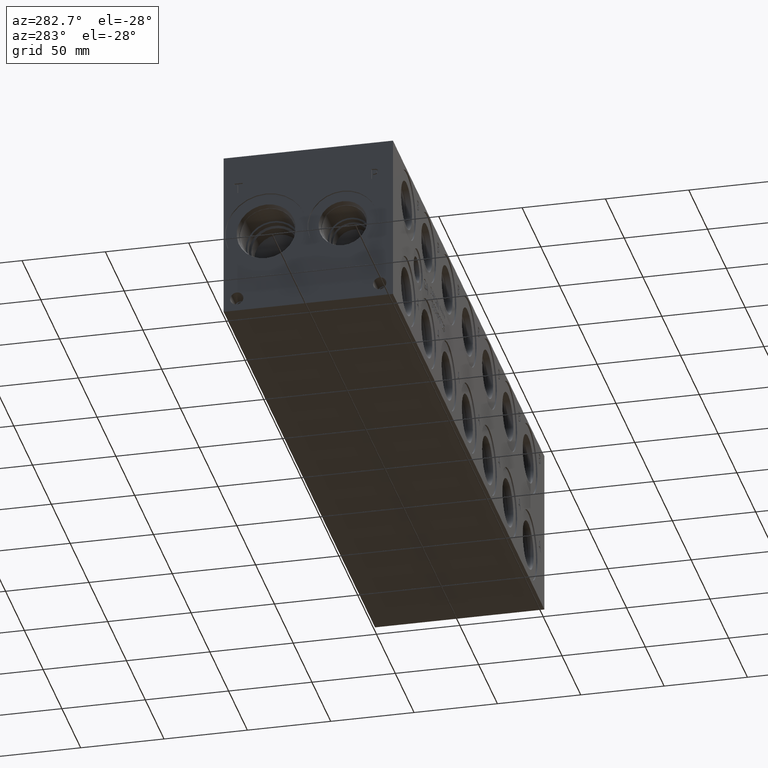
[diagram: clean part render]
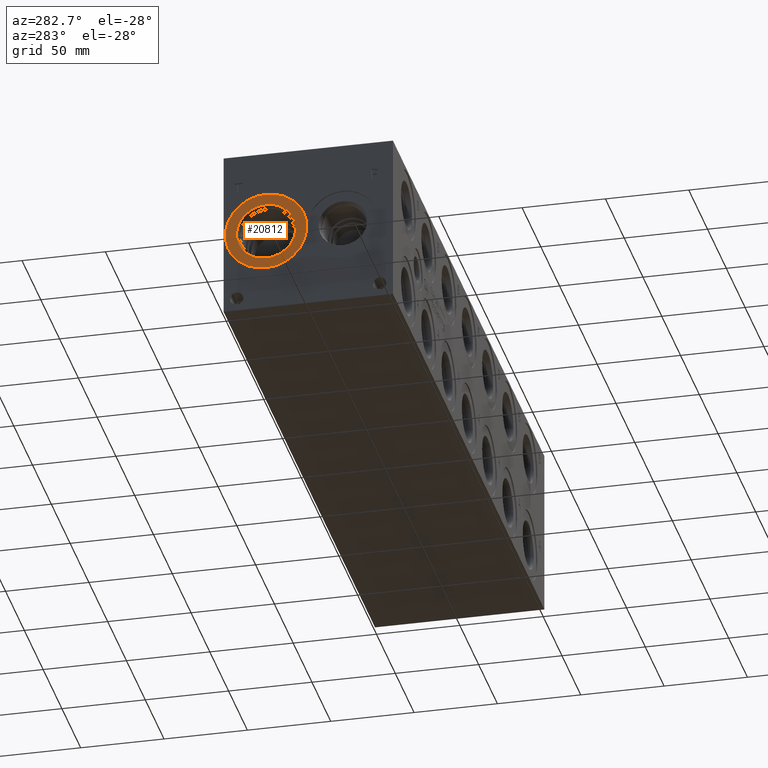
[diagram: same view with one face highlighted and labeled with its STEP entity id]
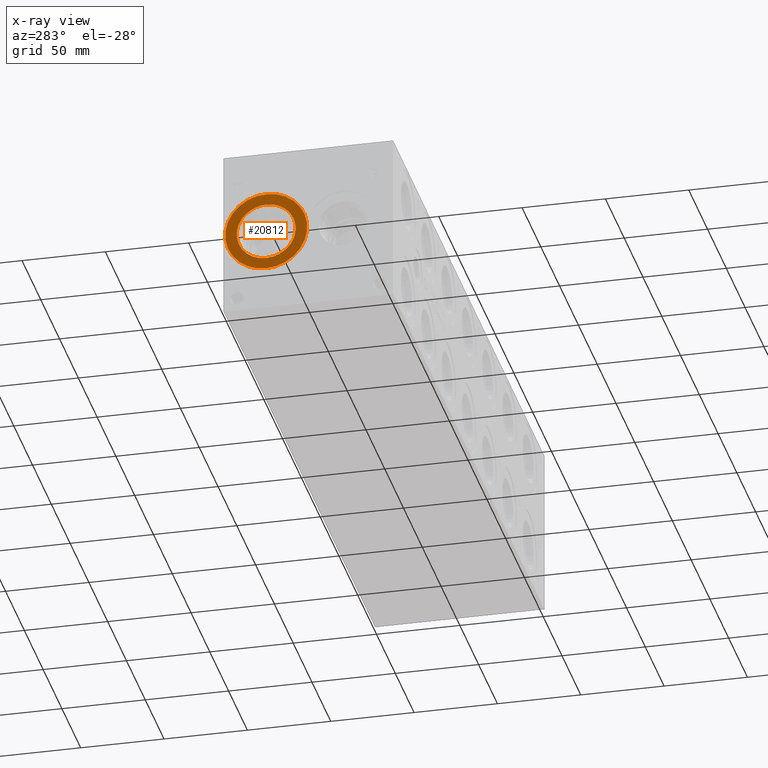
[diagram: x-ray of the same camera — body ghosted, the highlighted face saturated]
A machine part, auxiliary view. The second image highlights one B-rep face of the part: STEP entity #20812.
The next image is the same camera in x-ray: the body ghosted, the highlighted face saturated — about 0% of this face is hidden behind the body in this view.
In plain terms, the highlighted planar face has unit normal (1, 0, 0).
Its self-contained STEP definition (entity closure, byte-faithful):
#499=CIRCLE('',#21846,24.5618);
#500=CIRCLE('',#21847,24.5618);
#501=CIRCLE('',#21849,17.7546);
#502=CIRCLE('',#21850,17.7546);
#1223=FACE_BOUND('',#3967,.T.);
#2751=FACE_OUTER_BOUND('',#3966,.T.);
#3966=EDGE_LOOP('',(#16971,#16972));
#3967=EDGE_LOOP('',(#16973,#16974));
#9338=VERTEX_POINT('',#34891);
#9339=VERTEX_POINT('',#34893);
#9340=VERTEX_POINT('',#34897);
#9341=VERTEX_POINT('',#34898);
#12058=EDGE_CURVE('',#9338,#9339,#499,.T.);
#12059=EDGE_CURVE('',#9339,#9338,#500,.T.);
#12060=EDGE_CURVE('',#9340,#9341,#501,.T.);
#12061=EDGE_CURVE('',#9341,#9340,#502,.T.);
#16971=ORIENTED_EDGE('',*,*,#12059,.F.);
#16972=ORIENTED_EDGE('',*,*,#12058,.F.);
#16973=ORIENTED_EDGE('',*,*,#12060,.T.);
#16974=ORIENTED_EDGE('',*,*,#12061,.T.);
#19356=PLANE('',#21848);
#20812=ADVANCED_FACE('',(#2751,#1223),#19356,.F.);
#21846=AXIS2_PLACEMENT_3D('',#34894,#25584,#25585);
#21847=AXIS2_PLACEMENT_3D('',#34895,#25586,#25587);
#21848=AXIS2_PLACEMENT_3D('',#34896,#25588,#25589);
#21849=AXIS2_PLACEMENT_3D('',#34899,#25590,#25591);
#21850=AXIS2_PLACEMENT_3D('',#34900,#25592,#25593);
#25584=DIRECTION('center_axis',(1.,0.,0.));
#25585=DIRECTION('ref_axis',(0.,0.,-1.));
#25586=DIRECTION('center_axis',(1.,0.,0.));
#25587=DIRECTION('ref_axis',(0.,0.,-1.));
#25588=DIRECTION('center_axis',(1.,0.,0.));
#25589=DIRECTION('ref_axis',(0.,0.,-1.));
#25590=DIRECTION('center_axis',(1.,0.,0.));
#25591=DIRECTION('ref_axis',(0.,0.,-1.));
#25592=DIRECTION('center_axis',(1.,0.,0.));
#25593=DIRECTION('ref_axis',(0.,0.,-1.));
#34891=CARTESIAN_POINT('',(0.7874,76.2,26.2382));
#34893=CARTESIAN_POINT('',(0.7874,76.2,75.3618));
#34894=CARTESIAN_POINT('Origin',(0.7874,76.2,50.8));
#34895=CARTESIAN_POINT('Origin',(0.7874,76.2,50.8));
#34896=CARTESIAN_POINT('Origin',(0.7874,76.2,68.5546));
#34897=CARTESIAN_POINT('',(0.7874,76.2,68.5546));
#34898=CARTESIAN_POINT('',(0.787400000000001,76.2,33.0454));
#34899=CARTESIAN_POINT('Origin',(0.7874,76.2,50.8));
#34900=CARTESIAN_POINT('Origin',(0.7874,76.2,50.8));